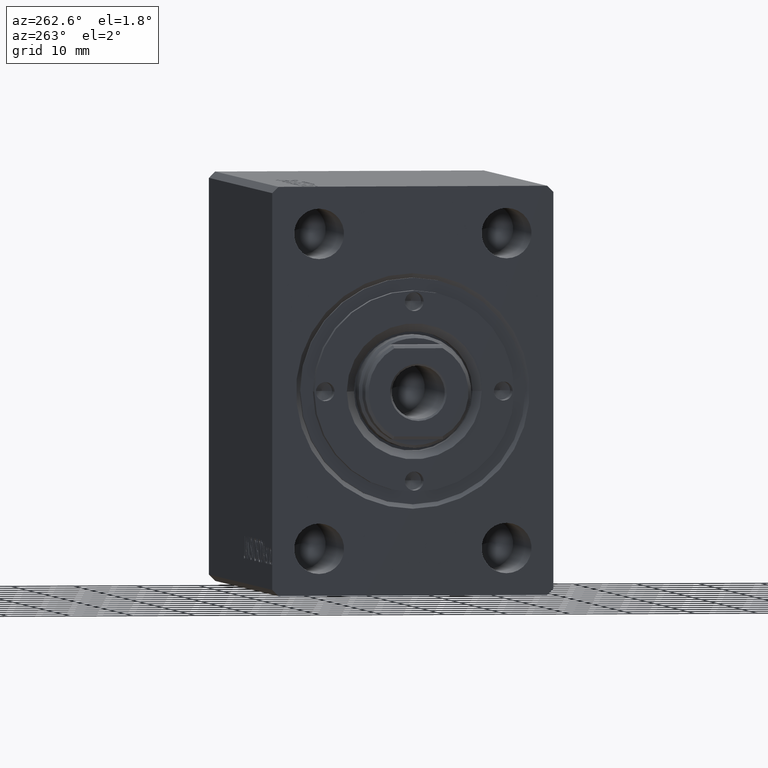
[diagram: clean part render]
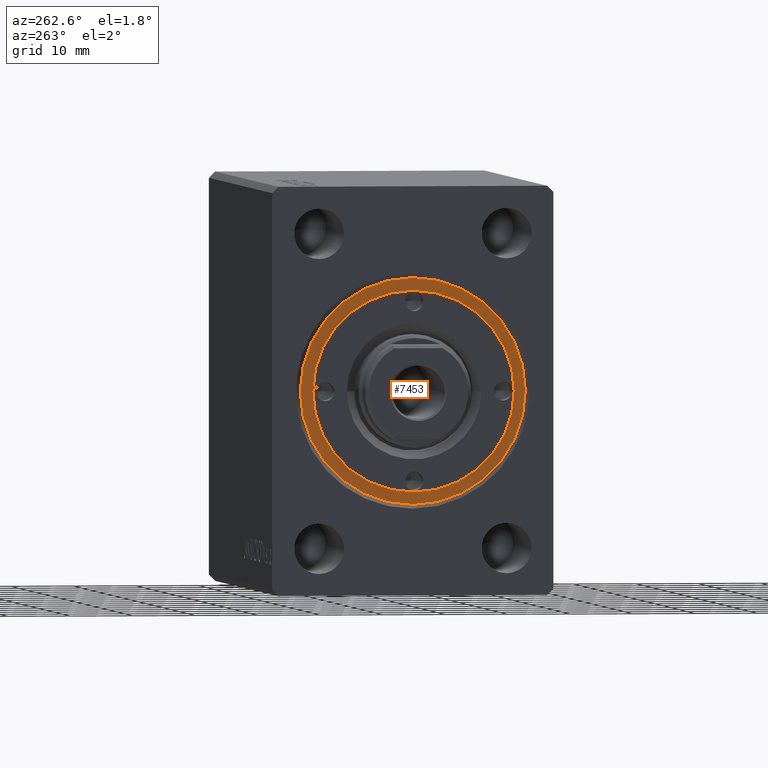
[diagram: same view with one face highlighted and labeled with its STEP entity id]
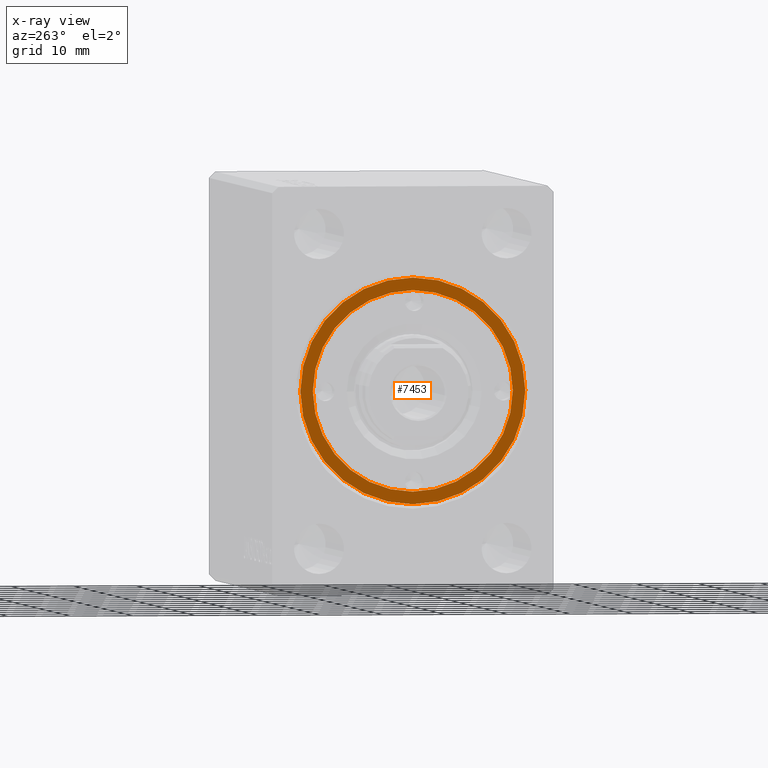
[diagram: x-ray of the same camera — body ghosted, the highlighted face saturated]
A machine part, auxiliary view. The second image highlights one B-rep face of the part: STEP entity #7453.
The next image is the same camera in x-ray: the body ghosted, the highlighted face saturated — about 0% of this face is hidden behind the body in this view.
In plain terms, the highlighted planar face has unit normal (-1, 0, 0).
Its self-contained STEP definition (entity closure, byte-faithful):
#190 = CARTESIAN_POINT ( 'NONE',  ( 0.000000000000000000, 0.000000000000000000, 58.00000000000000000 ) ) ;
#539 = AXIS2_PLACEMENT_3D ( 'NONE', #16543, #6692, #33932 ) ;
#3128 = ORIENTED_EDGE ( 'NONE', *, *, #42573, .T. ) ;
#3438 = CARTESIAN_POINT ( 'NONE',  ( -18.00000000000000000, 0.000000000000000000, 58.00000000000000000 ) ) ;
#4670 = CIRCLE ( 'NONE', #29618, 18.00000000000000000 ) ;
#5615 = CARTESIAN_POINT ( 'NONE',  ( 16.00000000000000000, 1.959434878635765131E-15, 58.00000000000000000 ) ) ;
#6216 = CIRCLE ( 'NONE', #539, 18.00000000000000000 ) ;
#6692 = DIRECTION ( 'NONE',  ( 0.000000000000000000, 0.000000000000000000, 1.000000000000000000 ) ) ;
#7453 = ADVANCED_FACE ( 'NONE', ( #36918, #40488 ), #40253, .T. ) ;
#7964 = AXIS2_PLACEMENT_3D ( 'NONE', #37583, #26878, #23763 ) ;
#8501 = VERTEX_POINT ( 'NONE', #3438 ) ;
#8527 = EDGE_LOOP ( 'NONE', ( #3128, #35320 ) ) ;
#9055 = VERTEX_POINT ( 'NONE', #30563 ) ;
#10403 = EDGE_CURVE ( 'NONE', #9055, #27361, #10885, .T. ) ;
#10885 = CIRCLE ( 'NONE', #32262, 16.00000000000000000 ) ;
#12611 = DIRECTION ( 'NONE',  ( 1.000000000000000000, 0.000000000000000000, 0.000000000000000000 ) ) ;
#15757 = CARTESIAN_POINT ( 'NONE',  ( 0.000000000000000000, 0.000000000000000000, 58.00000000000000000 ) ) ;
#16543 = CARTESIAN_POINT ( 'NONE',  ( 0.000000000000000000, 0.000000000000000000, 58.00000000000000000 ) ) ;
#16977 = ORIENTED_EDGE ( 'NONE', *, *, #10403, .F. ) ;
#21155 = ORIENTED_EDGE ( 'NONE', *, *, #37072, .F. ) ;
#21645 = DIRECTION ( 'NONE',  ( 0.000000000000000000, 0.000000000000000000, 1.000000000000000000 ) ) ;
#23763 = DIRECTION ( 'NONE',  ( 1.000000000000000000, 0.000000000000000000, -0.000000000000000000 ) ) ;
#24822 = EDGE_LOOP ( 'NONE', ( #16977, #21155 ) ) ;
#26550 = DIRECTION ( 'NONE',  ( 1.000000000000000000, 0.000000000000000000, 0.000000000000000000 ) ) ;
#26768 = DIRECTION ( 'NONE',  ( 0.000000000000000000, 0.000000000000000000, 1.000000000000000000 ) ) ;
#26878 = DIRECTION ( 'NONE',  ( 0.000000000000000000, 0.000000000000000000, 1.000000000000000000 ) ) ;
#27361 = VERTEX_POINT ( 'NONE', #5615 ) ;
#27456 = VERTEX_POINT ( 'NONE', #36633 ) ;
#29618 = AXIS2_PLACEMENT_3D ( 'NONE', #39018, #21645, #42162 ) ;
#30563 = CARTESIAN_POINT ( 'NONE',  ( -16.00000000000000000, 0.000000000000000000, 58.00000000000000000 ) ) ;
#32262 = AXIS2_PLACEMENT_3D ( 'NONE', #15757, #39626, #12611 ) ;
#32583 = CIRCLE ( 'NONE', #34020, 16.00000000000000000 ) ;
#32670 = EDGE_CURVE ( 'NONE', #27456, #8501, #4670, .T. ) ;
#33932 = DIRECTION ( 'NONE',  ( 1.000000000000000000, 0.000000000000000000, 0.000000000000000000 ) ) ;
#34020 = AXIS2_PLACEMENT_3D ( 'NONE', #190, #26768, #26550 ) ;
#35320 = ORIENTED_EDGE ( 'NONE', *, *, #32670, .T. ) ;
#36633 = CARTESIAN_POINT ( 'NONE',  ( 18.00000000000000000, 2.204364238465235033E-15, 58.00000000000000000 ) ) ;
#36918 = FACE_BOUND ( 'NONE', #24822, .T. ) ;
#37072 = EDGE_CURVE ( 'NONE', #27361, #9055, #32583, .T. ) ;
#37583 = CARTESIAN_POINT ( 'NONE',  ( 0.000000000000000000, 0.000000000000000000, 58.00000000000000000 ) ) ;
#39018 = CARTESIAN_POINT ( 'NONE',  ( 0.000000000000000000, 0.000000000000000000, 58.00000000000000000 ) ) ;
#39626 = DIRECTION ( 'NONE',  ( 0.000000000000000000, 0.000000000000000000, 1.000000000000000000 ) ) ;
#40253 = PLANE ( 'NONE',  #7964 ) ;
#40488 = FACE_OUTER_BOUND ( 'NONE', #8527, .T. ) ;
#42162 = DIRECTION ( 'NONE',  ( 1.000000000000000000, 0.000000000000000000, 0.000000000000000000 ) ) ;
#42573 = EDGE_CURVE ( 'NONE', #8501, #27456, #6216, .T. ) ;